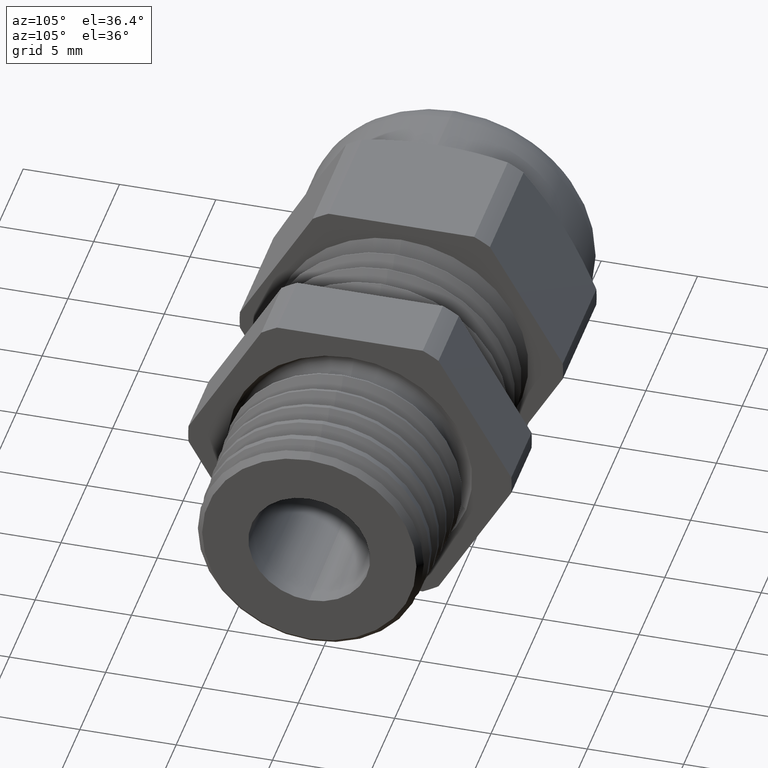
[diagram: clean part render]
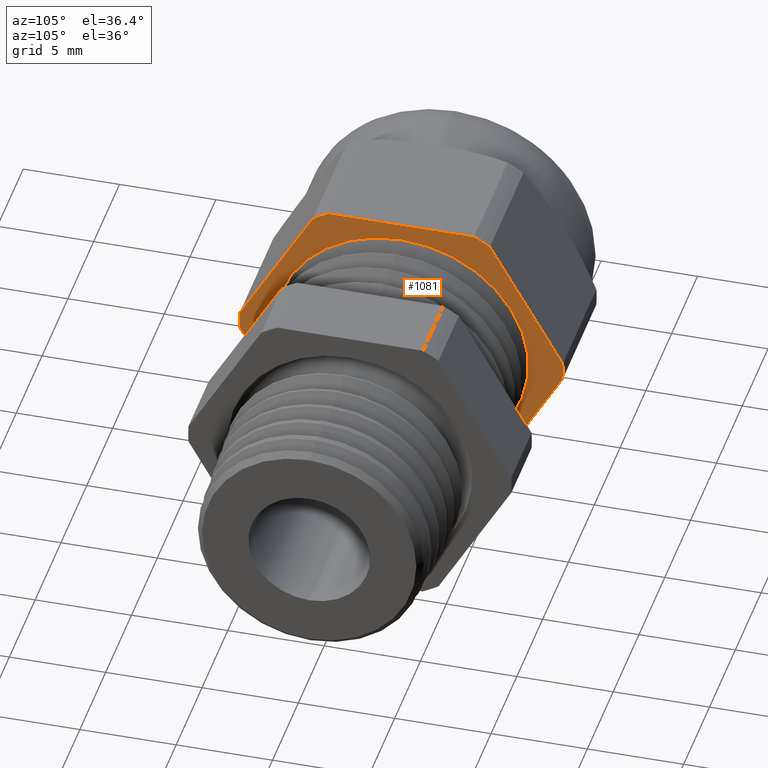
[diagram: same view with one face highlighted and labeled with its STEP entity id]
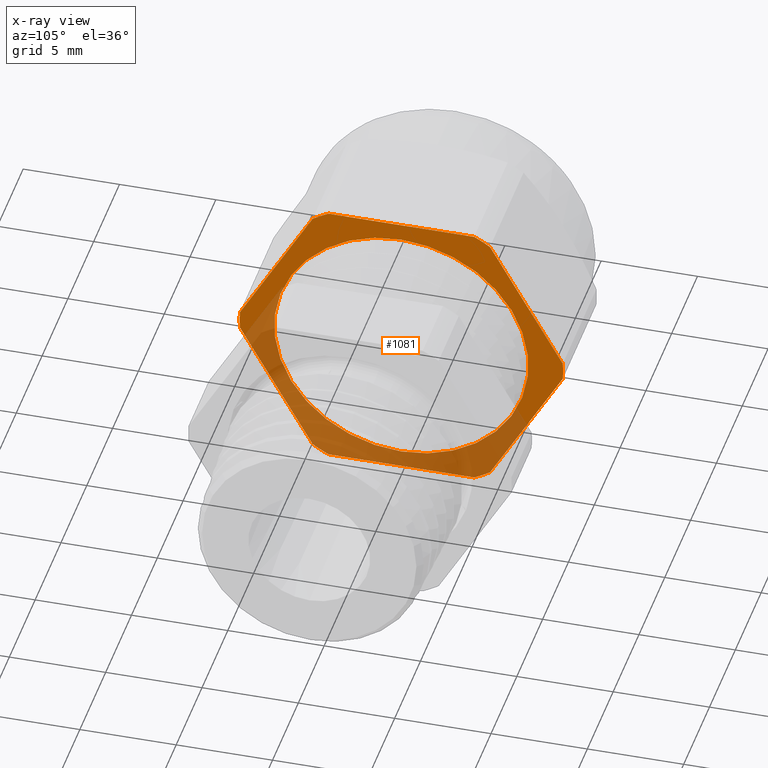
[diagram: x-ray of the same camera — body ghosted, the highlighted face saturated]
A machine part, auxiliary view. The second image highlights one B-rep face of the part: STEP entity #1081.
The next image is the same camera in x-ray: the body ghosted, the highlighted face saturated — about 44% of this face is hidden behind the body in this view.
In plain terms, the highlighted planar face has unit normal (-1, 0, 0).
Its self-contained STEP definition (entity closure, byte-faithful):
#501 = EDGE_CURVE ( 'NONE', #519, #503, #1749, .T. ) ;
#503 = VERTEX_POINT ( 'NONE', #1745 ) ;
#519 = VERTEX_POINT ( 'NONE', #1770 ) ;
#529 = EDGE_CURVE ( 'NONE', #534, #535, #1816, .T. ) ;
#534 = VERTEX_POINT ( 'NONE', #1798 ) ;
#535 = VERTEX_POINT ( 'NONE', #1797 ) ;
#574 = VERTEX_POINT ( 'NONE', #1899 ) ;
#576 = VERTEX_POINT ( 'NONE', #1898 ) ;
#577 = VERTEX_POINT ( 'NONE', #1897 ) ;
#578 = EDGE_CURVE ( 'NONE', #577, #576, #1896, .T. ) ;
#595 = VERTEX_POINT ( 'NONE', #1927 ) ;
#596 = VERTEX_POINT ( 'NONE', #1926 ) ;
#600 = EDGE_CURVE ( 'NONE', #595, #596, #1980, .T. ) ;
#614 = VERTEX_POINT ( 'NONE', #1967 ) ;
#615 = EDGE_CURVE ( 'NONE', #574, #614, #1966, .T. ) ;
#622 = VERTEX_POINT ( 'NONE', #2001 ) ;
#626 = VERTEX_POINT ( 'NONE', #1994 ) ;
#628 = EDGE_CURVE ( 'NONE', #626, #622, #1989, .T. ) ;
#637 = EDGE_CURVE ( 'NONE', #596, #519, #1984, .T. ) ;
#638 = EDGE_CURVE ( 'NONE', #503, #577, #2035, .T. ) ;
#641 = EDGE_CURVE ( 'NONE', #535, #574, #2030, .T. ) ;
#649 = EDGE_CURVE ( 'NONE', #622, #595, #2053, .T. ) ;
#651 = EDGE_CURVE ( 'NONE', #614, #626, #2049, .T. ) ;
#684 = ORIENTED_EDGE ( 'NONE', *, *, #628, .F. ) ;
#685 = ORIENTED_EDGE ( 'NONE', *, *, #600, .F. ) ;
#687 = ORIENTED_EDGE ( 'NONE', *, *, #649, .F. ) ;
#689 = ORIENTED_EDGE ( 'NONE', *, *, #651, .F. ) ;
#694 = ORIENTED_EDGE ( 'NONE', *, *, #615, .F. ) ;
#890 = VERTEX_POINT ( 'NONE', #2503 ) ;
#897 = EDGE_CURVE ( 'NONE', #900, #890, #2500, .T. ) ;
#900 = VERTEX_POINT ( 'NONE', #2490 ) ;
#1040 = EDGE_CURVE ( 'NONE', #576, #534, #2777, .T. ) ;
#1066 = ORIENTED_EDGE ( 'NONE', *, *, #638, .F. ) ;
#1067 = ORIENTED_EDGE ( 'NONE', *, *, #578, .F. ) ;
#1075 = ORIENTED_EDGE ( 'NONE', *, *, #641, .F. ) ;
#1076 = ORIENTED_EDGE ( 'NONE', *, *, #529, .F. ) ;
#1077 = ORIENTED_EDGE ( 'NONE', *, *, #1040, .F. ) ;
#1078 = ORIENTED_EDGE ( 'NONE', *, *, #1080, .F. ) ;
#1079 = ORIENTED_EDGE ( 'NONE', *, *, #897, .F. ) ;
#1080 = EDGE_CURVE ( 'NONE', #890, #900, #2830, .T. ) ;
#1081 = ADVANCED_FACE ( 'NONE', ( #2825, #2824 ), #2823, .F. ) ;
#1082 = EDGE_LOOP ( 'NONE', ( #1078, #1079 ) ) ;
#1083 = EDGE_LOOP ( 'NONE', ( #1075, #1076, #1077, #1067, #1066, #1468, #1405, #685, #687, #684, #689, #694 ) ) ;
#1405 = ORIENTED_EDGE ( 'NONE', *, *, #637, .F. ) ;
#1468 = ORIENTED_EDGE ( 'NONE', *, *, #501, .F. ) ;
#1745 = CARTESIAN_POINT ( 'NONE',  ( -0.3920833333333335100, 0.3298736633726285800, -0.01864205495973482100 ) ) ;
#1746 = DIRECTION ( 'NONE',  ( 0.0000000000000000000, 0.0000000000000000000, 1.000000000000000000 ) ) ;
#1747 = DIRECTION ( 'NONE',  ( -1.000000000000000000, 0.0000000000000000000, 0.0000000000000000000 ) ) ;
#1748 = AXIS2_PLACEMENT_3D ( 'NONE', #1754, #1747, #1746 ) ;
#1749 = CIRCLE ( 'NONE', #1748, 0.3304000000000001400 ) ;
#1754 = CARTESIAN_POINT ( 'NONE',  ( -0.3920833333333335100, 0.0000000000000000000, 0.0000000000000000000 ) ) ;
#1770 = CARTESIAN_POINT ( 'NONE',  ( -0.3920833333333335100, 0.3298736633726286900, 0.01864205495973385000 ) ) ;
#1797 = CARTESIAN_POINT ( 'NONE',  ( -0.3920833333333335100, -0.1810813248601903500, -0.2763579450402652300 ) ) ;
#1798 = CARTESIAN_POINT ( 'NONE',  ( -0.3920833333333335100, -0.1487923385124378900, -0.2950000000000003200 ) ) ;
#1812 = DIRECTION ( 'NONE',  ( 0.0000000000000000000, 0.0000000000000000000, 1.000000000000000000 ) ) ;
#1813 = DIRECTION ( 'NONE',  ( -1.000000000000000000, 0.0000000000000000000, 0.0000000000000000000 ) ) ;
#1814 = CARTESIAN_POINT ( 'NONE',  ( -0.3920833333333335100, 0.0000000000000000000, 0.0000000000000000000 ) ) ;
#1815 = AXIS2_PLACEMENT_3D ( 'NONE', #1814, #1813, #1812 ) ;
#1816 = CIRCLE ( 'NONE', #1815, 0.3304000000000001400 ) ;
#1892 = DIRECTION ( 'NONE',  ( 0.0000000000000000000, 0.0000000000000000000, 1.000000000000000000 ) ) ;
#1893 = DIRECTION ( 'NONE',  ( -1.000000000000000000, 0.0000000000000000000, 0.0000000000000000000 ) ) ;
#1894 = CARTESIAN_POINT ( 'NONE',  ( -0.3920833333333335100, 0.0000000000000000000, 0.0000000000000000000 ) ) ;
#1895 = AXIS2_PLACEMENT_3D ( 'NONE', #1894, #1893, #1892 ) ;
#1896 = CIRCLE ( 'NONE', #1895, 0.3304000000000001400 ) ;
#1897 = CARTESIAN_POINT ( 'NONE',  ( -0.3920833333333335100, 0.1810813248601902400, -0.2763579450402653400 ) ) ;
#1898 = CARTESIAN_POINT ( 'NONE',  ( -0.3920833333333335100, 0.1487923385124379500, -0.2950000000000002600 ) ) ;
#1899 = CARTESIAN_POINT ( 'NONE',  ( -0.3920833333333335100, -0.3298736633726285800, -0.01864205495973494200 ) ) ;
#1926 = CARTESIAN_POINT ( 'NONE',  ( -0.3920833333333335100, 0.1810813248601896000, 0.2763579450402657800 ) ) ;
#1927 = CARTESIAN_POINT ( 'NONE',  ( -0.3920833333333335100, 0.1487923385124394500, 0.2949999999999994800 ) ) ;
#1962 = DIRECTION ( 'NONE',  ( 0.0000000000000000000, 0.0000000000000000000, 1.000000000000000000 ) ) ;
#1963 = DIRECTION ( 'NONE',  ( -1.000000000000000000, 0.0000000000000000000, 0.0000000000000000000 ) ) ;
#1964 = CARTESIAN_POINT ( 'NONE',  ( -0.3920833333333335100, 0.0000000000000000000, 0.0000000000000000000 ) ) ;
#1965 = AXIS2_PLACEMENT_3D ( 'NONE', #1964, #1963, #1962 ) ;
#1966 = CIRCLE ( 'NONE', #1965, 0.3304000000000001400 ) ;
#1967 = CARTESIAN_POINT ( 'NONE',  ( -0.3920833333333335100, -0.3298736633726285800, 0.01864205495973494200 ) ) ;
#1976 = DIRECTION ( 'NONE',  ( 0.0000000000000000000, 0.0000000000000000000, 1.000000000000000000 ) ) ;
#1977 = DIRECTION ( 'NONE',  ( -1.000000000000000000, 0.0000000000000000000, 0.0000000000000000000 ) ) ;
#1978 = CARTESIAN_POINT ( 'NONE',  ( -0.3920833333333335100, 0.0000000000000000000, 0.0000000000000000000 ) ) ;
#1979 = AXIS2_PLACEMENT_3D ( 'NONE', #1978, #1977, #1976 ) ;
#1980 = CIRCLE ( 'NONE', #1979, 0.3304000000000001400 ) ;
#1981 = DIRECTION ( 'NONE',  ( 0.0000000000000000000, 0.4999999999999998900, -0.8660254037844386000 ) ) ;
#1982 = VECTOR ( 'NONE', #1981, 39.37007874015748900 ) ;
#1983 = CARTESIAN_POINT ( 'NONE',  ( -0.3920833333333335100, 0.3204024941164091400, 0.03504660131859050500 ) ) ;
#1984 = LINE ( 'NONE', #1983, #1982 ) ;
#1985 = DIRECTION ( 'NONE',  ( 0.0000000000000000000, 0.0000000000000000000, 1.000000000000000000 ) ) ;
#1986 = DIRECTION ( 'NONE',  ( -1.000000000000000000, 0.0000000000000000000, 0.0000000000000000000 ) ) ;
#1987 = CARTESIAN_POINT ( 'NONE',  ( -0.3920833333333335100, 0.0000000000000000000, 0.0000000000000000000 ) ) ;
#1988 = AXIS2_PLACEMENT_3D ( 'NONE', #1987, #1986, #1985 ) ;
#1989 = CIRCLE ( 'NONE', #1988, 0.3304000000000001400 ) ;
#1994 = CARTESIAN_POINT ( 'NONE',  ( -0.3920833333333335100, -0.1810813248601902400, 0.2763579450402652800 ) ) ;
#2001 = CARTESIAN_POINT ( 'NONE',  ( -0.3920833333333335100, -0.1487923385124393900, 0.2949999999999994300 ) ) ;
#2027 = DIRECTION ( 'NONE',  ( 0.0000000000000000000, -0.5000000000000001100, 0.8660254037844384900 ) ) ;
#2028 = VECTOR ( 'NONE', #2027, 39.37007874015748900 ) ;
#2029 = CARTESIAN_POINT ( 'NONE',  ( -0.3920833333333335100, -0.1905524941164094300, -0.2599533986814094900 ) ) ;
#2030 = LINE ( 'NONE', #2029, #2028 ) ;
#2032 = DIRECTION ( 'NONE',  ( 0.0000000000000000000, -0.5000000000000001100, -0.8660254037844386000 ) ) ;
#2033 = VECTOR ( 'NONE', #2032, 39.37007874015748100 ) ;
#2034 = CARTESIAN_POINT ( 'NONE',  ( -0.3920833333333335100, 0.3204024941164094200, -0.03504660131859069200 ) ) ;
#2035 = LINE ( 'NONE', #2034, #2033 ) ;
#2046 = DIRECTION ( 'NONE',  ( 0.0000000000000000000, 0.5000000000000001100, 0.8660254037844384900 ) ) ;
#2047 = VECTOR ( 'NONE', #2046, 39.37007874015748900 ) ;
#2048 = CARTESIAN_POINT ( 'NONE',  ( -0.3920833333333335100, -0.1905524941164094300, 0.2599533986814094900 ) ) ;
#2049 = LINE ( 'NONE', #2048, #2047 ) ;
#2050 = DIRECTION ( 'NONE',  ( 0.0000000000000000000, 1.000000000000000000, 0.0000000000000000000 ) ) ;
#2051 = VECTOR ( 'NONE', #2050, 39.37007874015748100 ) ;
#2052 = CARTESIAN_POINT ( 'NONE',  ( -0.3920833333333335100, 0.2596999999999999900, 0.2949999999999994300 ) ) ;
#2053 = LINE ( 'NONE', #2052, #2051 ) ;
#2490 = CARTESIAN_POINT ( 'NONE',  ( -0.3920833333333335100, 3.180407737385675900E-017, -0.2596999999999999900 ) ) ;
#2492 = DIRECTION ( 'NONE',  ( 0.0000000000000000000, 0.0000000000000000000, -1.000000000000000000 ) ) ;
#2493 = DIRECTION ( 'NONE',  ( 1.000000000000000000, 0.0000000000000000000, 0.0000000000000000000 ) ) ;
#2494 = CARTESIAN_POINT ( 'NONE',  ( -0.3920833333333335100, 0.0000000000000000000, 0.0000000000000000000 ) ) ;
#2495 = AXIS2_PLACEMENT_3D ( 'NONE', #2494, #2493, #2492 ) ;
#2500 = CIRCLE ( 'NONE', #2495, 0.2596999999999999900 ) ;
#2503 = CARTESIAN_POINT ( 'NONE',  ( -0.3920833333333335100, 0.0000000000000000000, 0.2596999999999999900 ) ) ;
#2774 = DIRECTION ( 'NONE',  ( 0.0000000000000000000, -1.000000000000000000, 0.0000000000000000000 ) ) ;
#2775 = VECTOR ( 'NONE', #2774, 39.37007874015748100 ) ;
#2776 = CARTESIAN_POINT ( 'NONE',  ( -0.3920833333333335100, 0.2596999999999999900, -0.2950000000000002600 ) ) ;
#2777 = LINE ( 'NONE', #2776, #2775 ) ;
#2819 = DIRECTION ( 'NONE',  ( 0.0000000000000000000, 0.0000000000000000000, 1.000000000000000000 ) ) ;
#2820 = DIRECTION ( 'NONE',  ( -1.000000000000000000, 0.0000000000000000000, 0.0000000000000000000 ) ) ;
#2821 = CARTESIAN_POINT ( 'NONE',  ( -0.3920833333333335100, 0.2596999999999999900, 0.0000000000000000000 ) ) ;
#2822 = AXIS2_PLACEMENT_3D ( 'NONE', #2821, #2820, #2819 ) ;
#2823 = PLANE ( 'NONE',  #2822 ) ;
#2824 = FACE_OUTER_BOUND ( 'NONE', #1083, .T. ) ;
#2825 = FACE_BOUND ( 'NONE', #1082, .T. ) ;
#2826 = DIRECTION ( 'NONE',  ( 0.0000000000000000000, 0.0000000000000000000, -1.000000000000000000 ) ) ;
#2827 = DIRECTION ( 'NONE',  ( 1.000000000000000000, 0.0000000000000000000, 0.0000000000000000000 ) ) ;
#2828 = CARTESIAN_POINT ( 'NONE',  ( -0.3920833333333335100, 0.0000000000000000000, 0.0000000000000000000 ) ) ;
#2829 = AXIS2_PLACEMENT_3D ( 'NONE', #2828, #2827, #2826 ) ;
#2830 = CIRCLE ( 'NONE', #2829, 0.2596999999999999900 ) ;